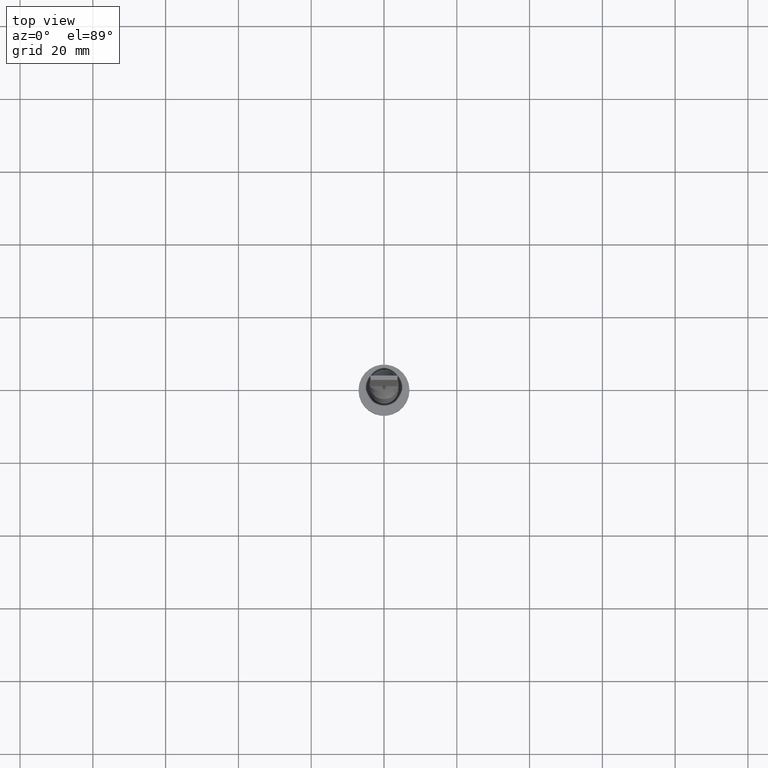
[diagram: clean part render]
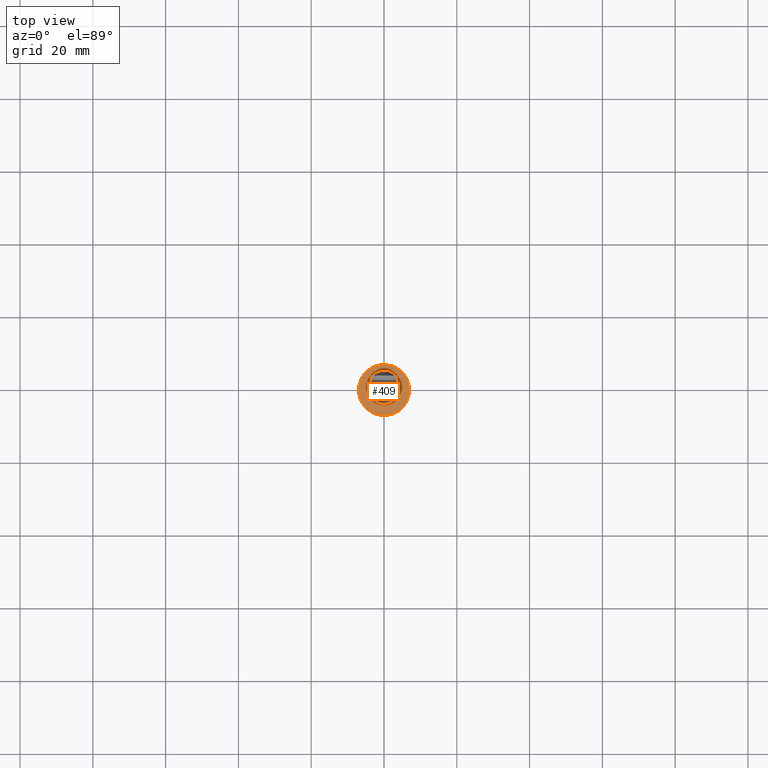
[diagram: same view with one face highlighted and labeled with its STEP entity id]
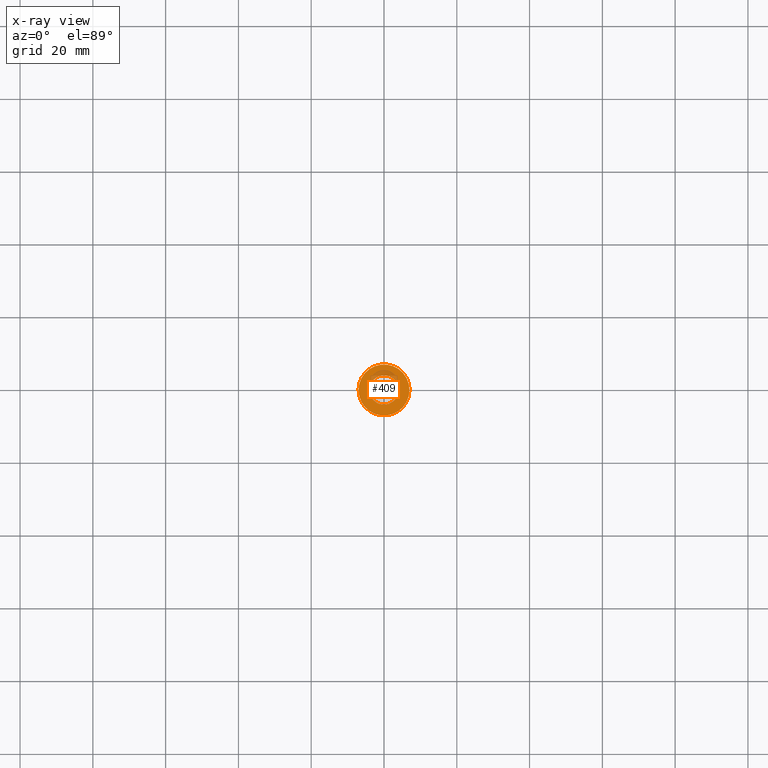
[diagram: x-ray of the same camera — body ghosted, the highlighted face saturated]
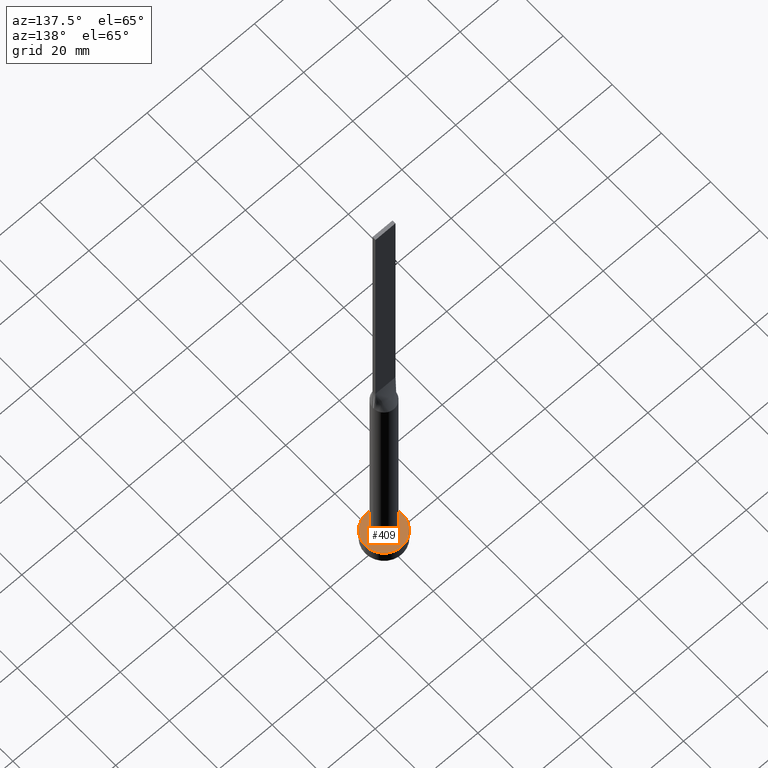
[diagram: same view with one face highlighted and labeled with its STEP entity id]
A machine part, top view. The second image highlights one B-rep face of the part: STEP entity #409.
The next image is the same camera in x-ray: the body ghosted, the highlighted face saturated — about 12% of this face is hidden behind the body in this view.
A second angle (auxiliary view) of the same face is appended — the face is thin or edge-on in the first view.
In plain terms, the highlighted planar face has unit normal (0, 0, 1).
Its self-contained STEP definition (entity closure, byte-faithful):
#5 = DIRECTION ( 'NONE',  ( 1.000000000000000000, 0.000000000000000000, 0.000000000000000000 ) ) ;
#8 = ORIENTED_EDGE ( 'NONE', *, *, #244, .T. ) ;
#16 = ORIENTED_EDGE ( 'NONE', *, *, #449, .F. ) ;
#23 = FACE_OUTER_BOUND ( 'NONE', #67, .T. ) ;
#40 = DIRECTION ( 'NONE',  ( 1.000000000000000000, 0.000000000000000000, 0.000000000000000000 ) ) ;
#48 = CARTESIAN_POINT ( 'NONE',  ( -7.000000000000000000, 0.000000000000000000, 5.000000000000000000 ) ) ;
#67 = EDGE_LOOP ( 'NONE', ( #8, #228 ) ) ;
#78 = CIRCLE ( 'NONE', #406, 7.000000000000000000 ) ;
#86 = DIRECTION ( 'NONE',  ( 0.000000000000000000, 0.000000000000000000, 1.000000000000000000 ) ) ;
#95 = CARTESIAN_POINT ( 'NONE',  ( 0.000000000000000000, 0.000000000000000000, 5.000000000000000000 ) ) ;
#103 = AXIS2_PLACEMENT_3D ( 'NONE', #185, #147, #107 ) ;
#107 = DIRECTION ( 'NONE',  ( 1.000000000000000000, 0.000000000000000000, 0.000000000000000000 ) ) ;
#131 = CARTESIAN_POINT ( 'NONE',  ( 4.000000000000000000, 4.898587196589412829E-16, 5.000000000000000000 ) ) ;
#146 = AXIS2_PLACEMENT_3D ( 'NONE', #412, #452, #505 ) ;
#147 = DIRECTION ( 'NONE',  ( 0.000000000000000000, 0.000000000000000000, 1.000000000000000000 ) ) ;
#185 = CARTESIAN_POINT ( 'NONE',  ( 0.000000000000000000, 0.000000000000000000, 5.000000000000000000 ) ) ;
#187 = CARTESIAN_POINT ( 'NONE',  ( -4.000000000000000000, 0.000000000000000000, 5.000000000000000000 ) ) ;
#222 = DIRECTION ( 'NONE',  ( 0.000000000000000000, 0.000000000000000000, 1.000000000000000000 ) ) ;
#223 = CARTESIAN_POINT ( 'NONE',  ( 7.000000000000000000, 8.572527594031473190E-16, 5.000000000000000000 ) ) ;
#226 = FACE_BOUND ( 'NONE', #374, .T. ) ;
#228 = ORIENTED_EDGE ( 'NONE', *, *, #235, .T. ) ;
#233 = AXIS2_PLACEMENT_3D ( 'NONE', #534, #256, #40 ) ;
#235 = EDGE_CURVE ( 'NONE', #445, #275, #498, .T. ) ;
#240 = VERTEX_POINT ( 'NONE', #131 ) ;
#244 = EDGE_CURVE ( 'NONE', #275, #445, #78, .T. ) ;
#256 = DIRECTION ( 'NONE',  ( 0.000000000000000000, 0.000000000000000000, 1.000000000000000000 ) ) ;
#272 = CIRCLE ( 'NONE', #233, 4.000000000000000000 ) ;
#275 = VERTEX_POINT ( 'NONE', #48 ) ;
#308 = DIRECTION ( 'NONE',  ( 1.000000000000000000, 0.000000000000000000, 0.000000000000000000 ) ) ;
#315 = EDGE_CURVE ( 'NONE', #361, #240, #272, .T. ) ;
#330 = ORIENTED_EDGE ( 'NONE', *, *, #315, .F. ) ;
#342 = CIRCLE ( 'NONE', #103, 4.000000000000000000 ) ;
#361 = VERTEX_POINT ( 'NONE', #187 ) ;
#374 = EDGE_LOOP ( 'NONE', ( #330, #16 ) ) ;
#406 = AXIS2_PLACEMENT_3D ( 'NONE', #489, #86, #308 ) ;
#409 = ADVANCED_FACE ( 'NONE', ( #226, #23 ), #457, .T. ) ;
#412 = CARTESIAN_POINT ( 'NONE',  ( 0.000000000000000000, 0.000000000000000000, 5.000000000000000000 ) ) ;
#445 = VERTEX_POINT ( 'NONE', #223 ) ;
#449 = EDGE_CURVE ( 'NONE', #240, #361, #342, .T. ) ;
#452 = DIRECTION ( 'NONE',  ( 0.000000000000000000, 0.000000000000000000, 1.000000000000000000 ) ) ;
#457 = PLANE ( 'NONE',  #146 ) ;
#465 = AXIS2_PLACEMENT_3D ( 'NONE', #95, #222, #5 ) ;
#489 = CARTESIAN_POINT ( 'NONE',  ( 0.000000000000000000, 0.000000000000000000, 5.000000000000000000 ) ) ;
#498 = CIRCLE ( 'NONE', #465, 7.000000000000000000 ) ;
#505 = DIRECTION ( 'NONE',  ( 1.000000000000000000, 0.000000000000000000, -0.000000000000000000 ) ) ;
#534 = CARTESIAN_POINT ( 'NONE',  ( 0.000000000000000000, 0.000000000000000000, 5.000000000000000000 ) ) ;